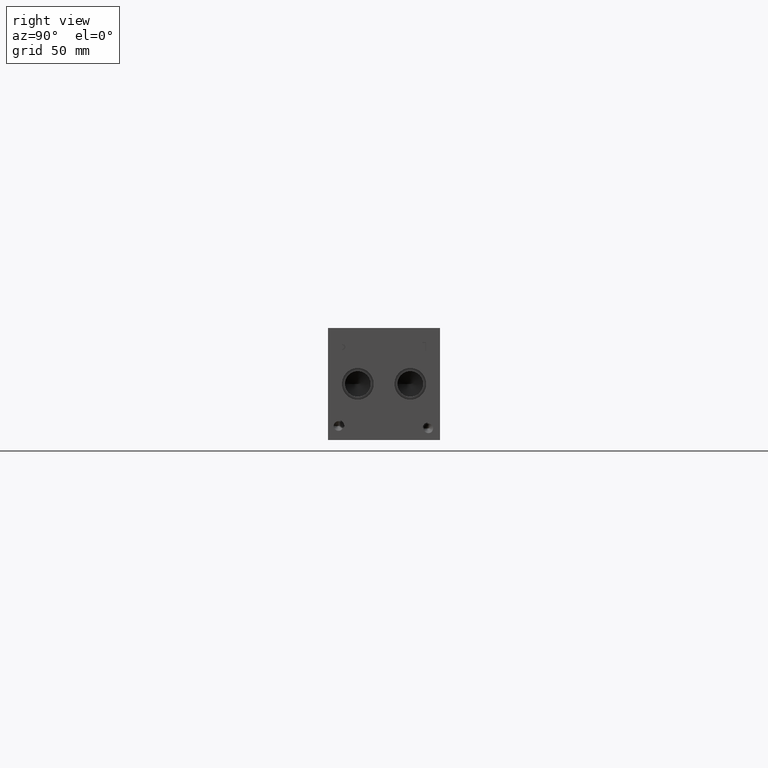
[diagram: clean part render]
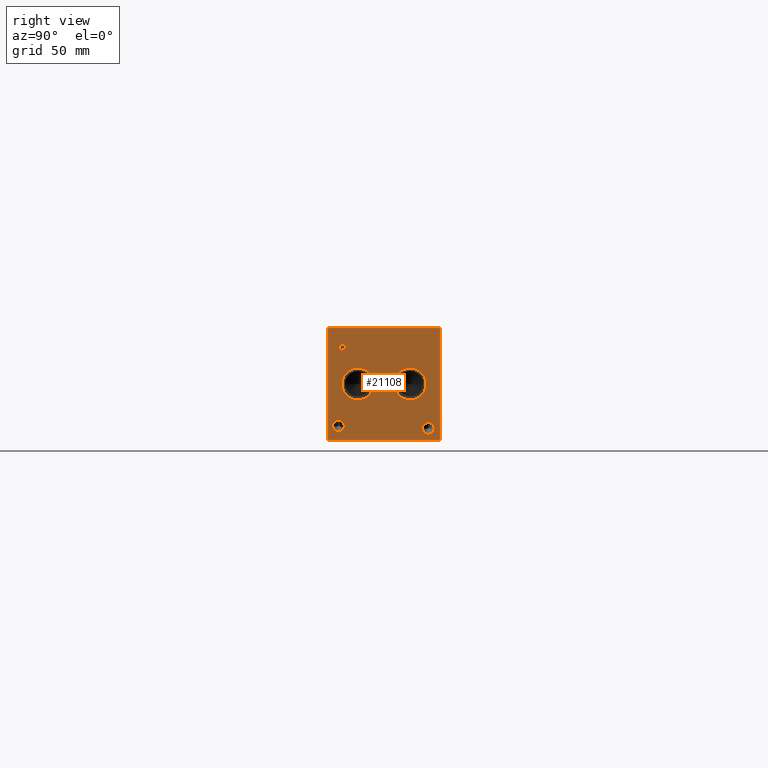
[diagram: same view with one face highlighted and labeled with its STEP entity id]
A machine part, right view. The second image highlights one B-rep face of the part: STEP entity #21108.
In plain terms, the highlighted planar face has unit normal (1, 0, 0).
Its self-contained STEP definition (entity closure, byte-faithful):
#339=CIRCLE('',#22024,10.795);
#340=CIRCLE('',#22025,10.795);
#341=CIRCLE('',#22026,10.795);
#342=CIRCLE('',#22027,10.795);
#343=CIRCLE('',#22028,3.9624);
#344=CIRCLE('',#22029,3.9624);
#345=CIRCLE('',#22030,3.9624);
#346=CIRCLE('',#22031,3.9624);
#1029=FACE_BOUND('',#3689,.T.);
#1030=FACE_BOUND('',#3690,.T.);
#1031=FACE_BOUND('',#3691,.T.);
#1032=FACE_BOUND('',#3692,.T.);
#1033=FACE_BOUND('',#3693,.T.);
#1034=FACE_BOUND('',#3694,.T.);
#1656=PLANE('',#22023);
#2477=FACE_OUTER_BOUND('',#3688,.T.);
#3688=EDGE_LOOP('',(#17369,#17370,#17371,#17372));
#3689=EDGE_LOOP('',(#17373,#17374));
#3690=EDGE_LOOP('',(#17375,#17376));
#3691=EDGE_LOOP('',(#17377,#17378));
#3692=EDGE_LOOP('',(#17379,#17380));
#3693=EDGE_LOOP('',(#17381,#17382,#17383,#17384,#17385,#17386,#17387,#17388));
#3694=EDGE_LOOP('',(#17389,#17390,#17391,#17392,#17393,#17394,#17395,#17396,
#17397));
#4283=LINE('',#28128,#6097);
#5661=LINE('',#35063,#7475);
#5664=LINE('',#35069,#7478);
#5667=LINE('',#35075,#7481);
#5670=LINE('',#35081,#7484);
#5673=LINE('',#35087,#7487);
#5677=LINE('',#35129,#7491);
#5678=LINE('',#35131,#7492);
#5679=LINE('',#35132,#7493);
#5680=LINE('',#35151,#7494);
#5681=LINE('',#35153,#7495);
#5682=LINE('',#35155,#7496);
#5683=LINE('',#35157,#7497);
#5684=LINE('',#35159,#7498);
#5685=LINE('',#35161,#7499);
#5686=LINE('',#35163,#7500);
#5687=LINE('',#35164,#7501);
#6097=VECTOR('',#23074,10.);
#7475=VECTOR('',#25434,10.);
#7478=VECTOR('',#25439,10.);
#7481=VECTOR('',#25444,10.);
#7484=VECTOR('',#25449,10.);
#7487=VECTOR('',#25454,10.);
#7491=VECTOR('',#25462,10.);
#7492=VECTOR('',#25463,10.);
#7493=VECTOR('',#25464,10.);
#7494=VECTOR('',#25481,10.);
#7495=VECTOR('',#25482,10.);
#7496=VECTOR('',#25483,10.);
#7497=VECTOR('',#25484,10.);
#7498=VECTOR('',#25485,10.);
#7499=VECTOR('',#25486,10.);
#7500=VECTOR('',#25487,10.);
#7501=VECTOR('',#25488,10.);
#8364=B_SPLINE_CURVE_WITH_KNOTS('',2,(#35030,#35031,#35032,#35033),
 .UNSPECIFIED.,.F.,.F.,(3,1,3),(0.,1.,2.),.UNSPECIFIED.);
#8366=B_SPLINE_CURVE_WITH_KNOTS('',2,(#35051,#35052,#35053,#35054),
 .UNSPECIFIED.,.F.,.F.,(3,1,3),(0.,1.,2.),.UNSPECIFIED.);
#8368=B_SPLINE_CURVE_WITH_KNOTS('',2,(#35100,#35101,#35102,#35103),
 .UNSPECIFIED.,.F.,.F.,(3,1,3),(0.,1.,2.),.UNSPECIFIED.);
#8370=B_SPLINE_CURVE_WITH_KNOTS('',2,(#35118,#35119,#35120,#35121),
 .UNSPECIFIED.,.F.,.F.,(3,1,3),(0.,1.,2.),.UNSPECIFIED.);
#8437=VERTEX_POINT('',#28125);
#8438=VERTEX_POINT('',#28127);
#9706=VERTEX_POINT('',#35028);
#9707=VERTEX_POINT('',#35029);
#9710=VERTEX_POINT('',#35050);
#9712=VERTEX_POINT('',#35062);
#9714=VERTEX_POINT('',#35068);
#9716=VERTEX_POINT('',#35074);
#9718=VERTEX_POINT('',#35080);
#9720=VERTEX_POINT('',#35086);
#9722=VERTEX_POINT('',#35099);
#9724=VERTEX_POINT('',#35128);
#9725=VERTEX_POINT('',#35130);
#9726=VERTEX_POINT('',#35133);
#9727=VERTEX_POINT('',#35134);
#9728=VERTEX_POINT('',#35137);
#9729=VERTEX_POINT('',#35138);
#9730=VERTEX_POINT('',#35141);
#9731=VERTEX_POINT('',#35142);
#9732=VERTEX_POINT('',#35145);
#9733=VERTEX_POINT('',#35146);
#9734=VERTEX_POINT('',#35149);
#9735=VERTEX_POINT('',#35150);
#9736=VERTEX_POINT('',#35152);
#9737=VERTEX_POINT('',#35154);
#9738=VERTEX_POINT('',#35156);
#9739=VERTEX_POINT('',#35158);
#9740=VERTEX_POINT('',#35160);
#9741=VERTEX_POINT('',#35162);
#10568=EDGE_CURVE('',#8437,#8438,#4283,.T.);
#12451=EDGE_CURVE('',#9706,#9707,#8364,.T.);
#12455=EDGE_CURVE('',#9710,#9706,#8366,.T.);
#12458=EDGE_CURVE('',#9712,#9710,#5661,.T.);
#12461=EDGE_CURVE('',#9714,#9712,#5664,.T.);
#12464=EDGE_CURVE('',#9716,#9714,#5667,.T.);
#12467=EDGE_CURVE('',#9718,#9716,#5670,.T.);
#12470=EDGE_CURVE('',#9720,#9718,#5673,.T.);
#12473=EDGE_CURVE('',#9722,#9720,#8368,.T.);
#12476=EDGE_CURVE('',#9707,#9722,#8370,.T.);
#12478=EDGE_CURVE('',#8437,#9724,#5677,.T.);
#12479=EDGE_CURVE('',#9724,#9725,#5678,.T.);
#12480=EDGE_CURVE('',#8438,#9725,#5679,.T.);
#12481=EDGE_CURVE('',#9726,#9727,#339,.T.);
#12482=EDGE_CURVE('',#9727,#9726,#340,.T.);
#12483=EDGE_CURVE('',#9728,#9729,#341,.T.);
#12484=EDGE_CURVE('',#9729,#9728,#342,.T.);
#12485=EDGE_CURVE('',#9730,#9731,#343,.T.);
#12486=EDGE_CURVE('',#9731,#9730,#344,.T.);
#12487=EDGE_CURVE('',#9732,#9733,#345,.T.);
#12488=EDGE_CURVE('',#9733,#9732,#346,.T.);
#12489=EDGE_CURVE('',#9734,#9735,#5680,.T.);
#12490=EDGE_CURVE('',#9735,#9736,#5681,.T.);
#12491=EDGE_CURVE('',#9736,#9737,#5682,.T.);
#12492=EDGE_CURVE('',#9737,#9738,#5683,.T.);
#12493=EDGE_CURVE('',#9738,#9739,#5684,.T.);
#12494=EDGE_CURVE('',#9739,#9740,#5685,.T.);
#12495=EDGE_CURVE('',#9740,#9741,#5686,.T.);
#12496=EDGE_CURVE('',#9741,#9734,#5687,.T.);
#17369=ORIENTED_EDGE('',*,*,#12478,.T.);
#17370=ORIENTED_EDGE('',*,*,#12479,.T.);
#17371=ORIENTED_EDGE('',*,*,#12480,.F.);
#17372=ORIENTED_EDGE('',*,*,#10568,.F.);
#17373=ORIENTED_EDGE('',*,*,#12481,.T.);
#17374=ORIENTED_EDGE('',*,*,#12482,.T.);
#17375=ORIENTED_EDGE('',*,*,#12483,.T.);
#17376=ORIENTED_EDGE('',*,*,#12484,.T.);
#17377=ORIENTED_EDGE('',*,*,#12485,.T.);
#17378=ORIENTED_EDGE('',*,*,#12486,.T.);
#17379=ORIENTED_EDGE('',*,*,#12487,.T.);
#17380=ORIENTED_EDGE('',*,*,#12488,.T.);
#17381=ORIENTED_EDGE('',*,*,#12489,.T.);
#17382=ORIENTED_EDGE('',*,*,#12490,.T.);
#17383=ORIENTED_EDGE('',*,*,#12491,.T.);
#17384=ORIENTED_EDGE('',*,*,#12492,.T.);
#17385=ORIENTED_EDGE('',*,*,#12493,.T.);
#17386=ORIENTED_EDGE('',*,*,#12494,.T.);
#17387=ORIENTED_EDGE('',*,*,#12495,.T.);
#17388=ORIENTED_EDGE('',*,*,#12496,.T.);
#17389=ORIENTED_EDGE('',*,*,#12451,.T.);
#17390=ORIENTED_EDGE('',*,*,#12476,.T.);
#17391=ORIENTED_EDGE('',*,*,#12473,.T.);
#17392=ORIENTED_EDGE('',*,*,#12470,.T.);
#17393=ORIENTED_EDGE('',*,*,#12467,.T.);
#17394=ORIENTED_EDGE('',*,*,#12464,.T.);
#17395=ORIENTED_EDGE('',*,*,#12461,.T.);
#17396=ORIENTED_EDGE('',*,*,#12458,.T.);
#17397=ORIENTED_EDGE('',*,*,#12455,.T.);
#21108=ADVANCED_FACE('',(#2477,#1029,#1030,#1031,#1032,#1033,#1034),#1656,
 .T.);
#22023=AXIS2_PLACEMENT_3D('',#35127,#25460,#25461);
#22024=AXIS2_PLACEMENT_3D('',#35135,#25465,#25466);
#22025=AXIS2_PLACEMENT_3D('',#35136,#25467,#25468);
#22026=AXIS2_PLACEMENT_3D('',#35139,#25469,#25470);
#22027=AXIS2_PLACEMENT_3D('',#35140,#25471,#25472);
#22028=AXIS2_PLACEMENT_3D('',#35143,#25473,#25474);
#22029=AXIS2_PLACEMENT_3D('',#35144,#25475,#25476);
#22030=AXIS2_PLACEMENT_3D('',#35147,#25477,#25478);
#22031=AXIS2_PLACEMENT_3D('',#35148,#25479,#25480);
#23074=DIRECTION('',(0.,0.,1.));
#25434=DIRECTION('',(0.,1.,0.));
#25439=DIRECTION('',(0.,0.,1.));
#25444=DIRECTION('',(0.,-1.,0.));
#25449=DIRECTION('',(0.,0.,-1.));
#25454=DIRECTION('',(0.,-1.,0.));
#25460=DIRECTION('center_axis',(1.,0.,0.));
#25461=DIRECTION('ref_axis',(0.,1.,0.));
#25462=DIRECTION('',(0.,1.,0.));
#25463=DIRECTION('',(0.,0.,1.));
#25464=DIRECTION('',(0.,1.,0.));
#25465=DIRECTION('center_axis',(-1.,0.,0.));
#25466=DIRECTION('ref_axis',(0.,1.,0.));
#25467=DIRECTION('center_axis',(-1.,0.,0.));
#25468=DIRECTION('ref_axis',(0.,1.,0.));
#25469=DIRECTION('center_axis',(-1.,0.,0.));
#25470=DIRECTION('ref_axis',(0.,1.,0.));
#25471=DIRECTION('center_axis',(-1.,0.,0.));
#25472=DIRECTION('ref_axis',(0.,1.,0.));
#25473=DIRECTION('center_axis',(-1.,0.,0.));
#25474=DIRECTION('ref_axis',(0.,1.,0.));
#25475=DIRECTION('center_axis',(-1.,0.,0.));
#25476=DIRECTION('ref_axis',(0.,1.,0.));
#25477=DIRECTION('center_axis',(-1.,0.,0.));
#25478=DIRECTION('ref_axis',(0.,1.,0.));
#25479=DIRECTION('center_axis',(-1.,0.,0.));
#25480=DIRECTION('ref_axis',(0.,1.,0.));
#25481=DIRECTION('',(0.,-1.,0.));
#25482=DIRECTION('',(0.,0.,1.));
#25483=DIRECTION('',(0.,-1.,0.));
#25484=DIRECTION('',(0.,0.,1.));
#25485=DIRECTION('',(0.,1.,0.));
#25486=DIRECTION('',(0.,0.,-1.));
#25487=DIRECTION('',(0.,-1.,0.));
#25488=DIRECTION('',(0.,0.,-1.));
#28125=CARTESIAN_POINT('',(485.775,0.,0.));
#28127=CARTESIAN_POINT('',(485.775,0.,76.2));
#28128=CARTESIAN_POINT('',(485.775,0.,0.));
#35028=CARTESIAN_POINT('',(485.775,11.0443172023594,64.6912681439707));
#35029=CARTESIAN_POINT('',(485.775,11.800759654532,63.1732373726039));
#35030=CARTESIAN_POINT('Ctrl Pts',(485.775,11.0443172023594,64.6912681439707));
#35031=CARTESIAN_POINT('Ctrl Pts',(485.775,11.3993820268486,64.4494123939564));
#35032=CARTESIAN_POINT('Ctrl Pts',(485.775,11.800759654532,63.7032616758269));
#35033=CARTESIAN_POINT('Ctrl Pts',(485.775,11.800759654532,63.1732373726039));
#35050=CARTESIAN_POINT('',(485.775,9.3822021543883,65.0874999046326));
#35051=CARTESIAN_POINT('Ctrl Pts',(485.775,9.3822021543883,65.0874999046326));
#35052=CARTESIAN_POINT('Ctrl Pts',(485.775,9.94824752676236,65.0874999046326));
#35053=CARTESIAN_POINT('Ctrl Pts',(485.775,10.740711048086,64.9022486918556));
#35054=CARTESIAN_POINT('Ctrl Pts',(485.775,11.0443172023594,64.6912681439707));
#35062=CARTESIAN_POINT('',(485.775,7.78698337769779,65.0874999046326));
#35063=CARTESIAN_POINT('',(485.775,3.89349168884889,65.0874999046326));
#35068=CARTESIAN_POINT('',(485.775,7.78698337769779,58.7375));
#35069=CARTESIAN_POINT('',(485.775,7.78698337769779,29.36875));
#35074=CARTESIAN_POINT('',(485.775,8.63090556923729,58.7375));
#35075=CARTESIAN_POINT('',(485.775,4.31545278461864,58.7375));
#35080=CARTESIAN_POINT('',(485.775,8.63090556923729,61.1045988299279));
#35081=CARTESIAN_POINT('',(485.775,8.63090556923729,30.5522994149639));
#35086=CARTESIAN_POINT('',(485.775,9.34618108523723,61.1045988299279));
#35087=CARTESIAN_POINT('',(485.775,4.67309054261861,61.1045988299279));
#35099=CARTESIAN_POINT('',(485.775,11.2450060162011,61.7632698086904));
#35100=CARTESIAN_POINT('Ctrl Pts',(485.775,11.2450060162011,61.7632698086904));
#35101=CARTESIAN_POINT('Ctrl Pts',(485.775,10.9156705268198,61.4390801863307));
#35102=CARTESIAN_POINT('Ctrl Pts',(485.775,10.0254355320861,61.1045988299279));
#35103=CARTESIAN_POINT('Ctrl Pts',(485.775,9.34618108523723,61.1045988299279));
#35118=CARTESIAN_POINT('Ctrl Pts',(485.775,11.800759654532,63.1732373726039));
#35119=CARTESIAN_POINT('Ctrl Pts',(485.775,11.800759654532,62.7615680108774));
#35120=CARTESIAN_POINT('Ctrl Pts',(485.775,11.5074452343018,62.0205631597695));
#35121=CARTESIAN_POINT('Ctrl Pts',(485.775,11.2450060162011,61.7632698086904));
#35127=CARTESIAN_POINT('Origin',(485.775,0.,0.));
#35128=CARTESIAN_POINT('',(485.775,76.2,0.));
#35129=CARTESIAN_POINT('',(485.775,0.,0.));
#35130=CARTESIAN_POINT('',(485.775,76.2,76.2));
#35131=CARTESIAN_POINT('',(485.775,76.2,0.));
#35132=CARTESIAN_POINT('',(485.775,0.,76.2));
#35133=CARTESIAN_POINT('',(485.775,31.0388,38.1));
#35134=CARTESIAN_POINT('',(485.775,9.4488,38.1));
#35135=CARTESIAN_POINT('Origin',(485.775,20.2438,38.1));
#35136=CARTESIAN_POINT('Origin',(485.775,20.2438,38.1));
#35137=CARTESIAN_POINT('',(485.775,66.7512,38.1));
#35138=CARTESIAN_POINT('',(485.775,45.1612,38.1));
#35139=CARTESIAN_POINT('Origin',(485.775,55.9562,38.1));
#35140=CARTESIAN_POINT('Origin',(485.775,55.9562,38.1));
#35141=CARTESIAN_POINT('',(485.775,11.08075,9.525));
#35142=CARTESIAN_POINT('',(485.775,3.15595,9.525));
#35143=CARTESIAN_POINT('Origin',(485.775,7.11835,9.525));
#35144=CARTESIAN_POINT('Origin',(485.775,7.11835,9.525));
#35145=CARTESIAN_POINT('',(485.775,72.2376,7.9248));
#35146=CARTESIAN_POINT('',(485.775,64.3128,7.9248));
#35147=CARTESIAN_POINT('Origin',(485.775,68.2752,7.9248));
#35148=CARTESIAN_POINT('Origin',(485.775,68.2752,7.9248));
#35149=CARTESIAN_POINT('',(485.775,67.262915271453,60.325));
#35150=CARTESIAN_POINT('',(485.775,66.4189930799135,60.325));
#35151=CARTESIAN_POINT('',(485.775,33.6314576357265,60.325));
#35152=CARTESIAN_POINT('',(485.775,66.4189930799135,65.9237033194816));
#35153=CARTESIAN_POINT('',(485.775,66.4189930799135,30.1625));
#35154=CARTESIAN_POINT('',(485.775,64.2886041329784,65.9237033194816));
#35155=CARTESIAN_POINT('',(485.775,33.2094965399567,65.9237033194816));
#35156=CARTESIAN_POINT('',(485.775,64.2886041329784,66.6749999046326));
#35157=CARTESIAN_POINT('',(485.775,64.2886041329784,32.9618516597408));
#35158=CARTESIAN_POINT('',(485.775,69.3933042183881,66.6749999046326));
#35159=CARTESIAN_POINT('',(485.775,32.1443020664892,66.6749999046326));
#35160=CARTESIAN_POINT('',(485.775,69.3933042183881,65.9237033194816));
#35161=CARTESIAN_POINT('',(485.775,69.3933042183881,33.3374999523163));
#35162=CARTESIAN_POINT('',(485.775,67.262915271453,65.9237033194816));
#35163=CARTESIAN_POINT('',(485.775,34.696652109194,65.9237033194816));
#35164=CARTESIAN_POINT('',(485.775,67.262915271453,32.9618516597408));